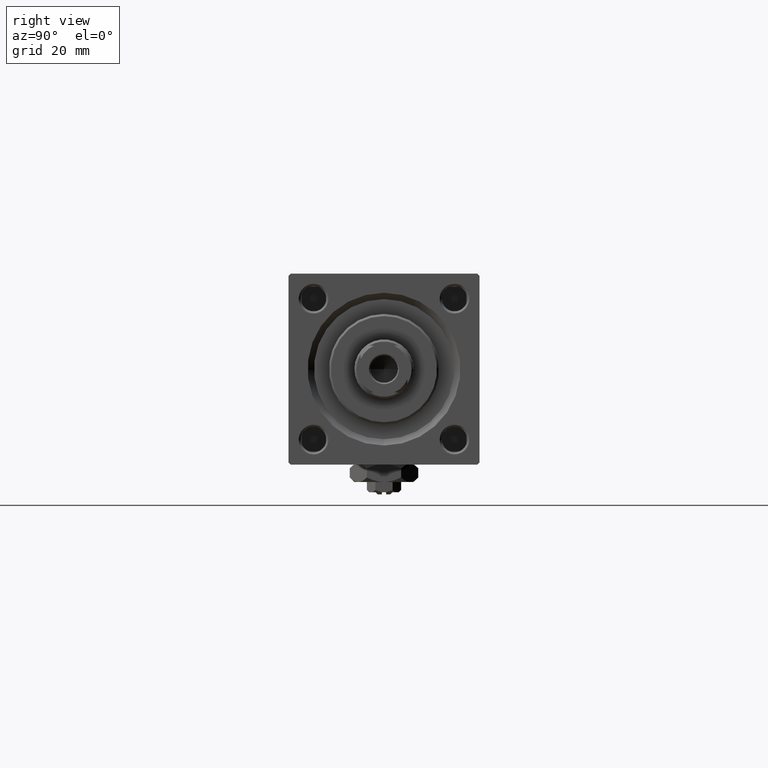
[diagram: clean part render]
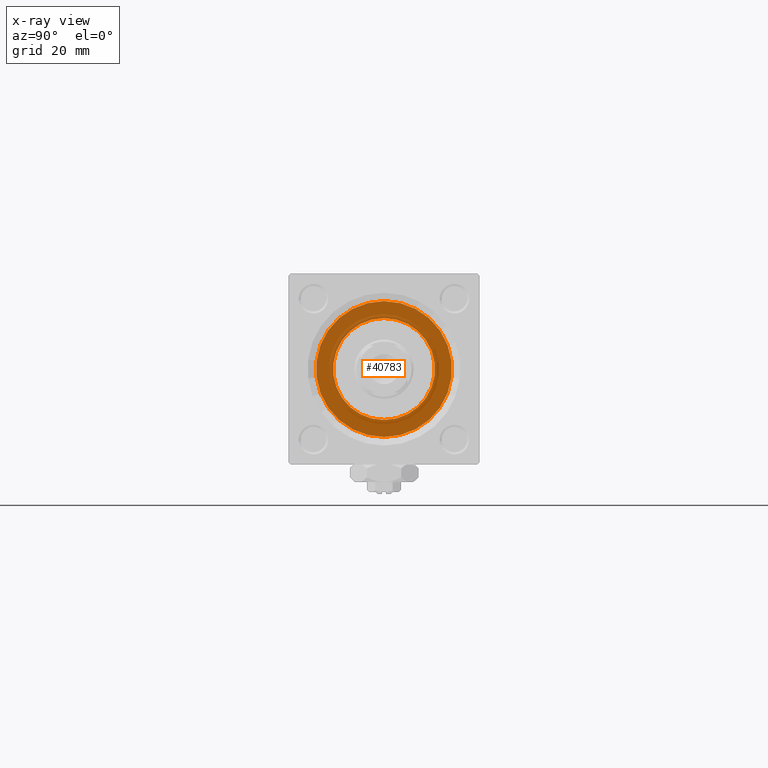
[diagram: x-ray — body ghosted, one internal face saturated and labeled with its STEP entity id]
A machine part, right view, then the same camera in x-ray: the body is ghosted and one INTERNAL B-rep face — a face not visible from any outside direction — is saturated and labeled: STEP entity #40783.
In plain terms, the highlighted planar face has unit normal (-1, 0, 0).
Its self-contained STEP definition (entity closure, byte-faithful):
#442 = DIRECTION ( 'NONE',  ( -1.000000000000000000, 0.000000000000000000, -0.000000000000000000 ) ) ;
#799 = CARTESIAN_POINT ( 'NONE',  ( 75.00000000000001421, 0.000000000000000000, 0.000000000000000000 ) ) ;
#1592 = EDGE_LOOP ( 'NONE', ( #27091, #36374 ) ) ;
#4223 = DIRECTION ( 'NONE',  ( -1.000000000000000000, 0.000000000000000000, -0.000000000000000000 ) ) ;
#4748 = CARTESIAN_POINT ( 'NONE',  ( 75.00000000000001421, 0.000000000000000000, 0.000000000000000000 ) ) ;
#7563 = CIRCLE ( 'NONE', #50542, 12.00000000000000178 ) ;
#9859 = EDGE_CURVE ( 'NONE', #45042, #16268, #7563, .T. ) ;
#10024 = CARTESIAN_POINT ( 'NONE',  ( 75.00000000000001421, -6.426503353294456087E-16, -16.00000000000000000 ) ) ;
#12125 = FACE_OUTER_BOUND ( 'NONE', #40928, .T. ) ;
#12746 = CIRCLE ( 'NONE', #27063, 16.00000000000000000 ) ;
#12914 = PLANE ( 'NONE',  #13118 ) ;
#13118 = AXIS2_PLACEMENT_3D ( 'NONE', #4748, #4223, #36133 ) ;
#13974 = CARTESIAN_POINT ( 'NONE',  ( 75.00000000000001421, -2.602085213965210642E-15, 16.00000000000000000 ) ) ;
#15455 = EDGE_CURVE ( 'NONE', #50141, #51930, #20936, .T. ) ;
#15731 = ORIENTED_EDGE ( 'NONE', *, *, #26838, .F. ) ;
#16268 = VERTEX_POINT ( 'NONE', #28775 ) ;
#18019 = CIRCLE ( 'NONE', #49160, 12.00000000000000178 ) ;
#20817 = DIRECTION ( 'NONE',  ( 1.000000000000000000, 0.000000000000000000, 0.000000000000000000 ) ) ;
#20936 = CIRCLE ( 'NONE', #45368, 16.00000000000000000 ) ;
#21133 = DIRECTION ( 'NONE',  ( 0.000000000000000000, 0.000000000000000000, -1.000000000000000000 ) ) ;
#24509 = CARTESIAN_POINT ( 'NONE',  ( 75.00000000000001421, -2.602085213965210642E-15, 0.000000000000000000 ) ) ;
#26838 = EDGE_CURVE ( 'NONE', #51930, #50141, #12746, .T. ) ;
#27063 = AXIS2_PLACEMENT_3D ( 'NONE', #34037, #50143, #21133 ) ;
#27091 = ORIENTED_EDGE ( 'NONE', *, *, #9859, .F. ) ;
#27875 = CARTESIAN_POINT ( 'NONE',  ( 75.00000000000001421, 0.000000000000000000, 0.000000000000000000 ) ) ;
#28775 = CARTESIAN_POINT ( 'NONE',  ( 75.00000000000001421, 1.469576158976824144E-15, 12.00000000000000178 ) ) ;
#32717 = DIRECTION ( 'NONE',  ( -1.000000000000000000, 0.000000000000000000, -0.000000000000000000 ) ) ;
#34037 = CARTESIAN_POINT ( 'NONE',  ( 75.00000000000001421, -2.602085213965210642E-15, 0.000000000000000000 ) ) ;
#34774 = CARTESIAN_POINT ( 'NONE',  ( 75.00000000000001421, 0.000000000000000000, -12.00000000000000178 ) ) ;
#36133 = DIRECTION ( 'NONE',  ( -0.000000000000000000, 0.000000000000000000, 1.000000000000000000 ) ) ;
#36374 = ORIENTED_EDGE ( 'NONE', *, *, #50919, .F. ) ;
#37076 = ORIENTED_EDGE ( 'NONE', *, *, #15455, .F. ) ;
#37185 = FACE_BOUND ( 'NONE', #1592, .T. ) ;
#37985 = DIRECTION ( 'NONE',  ( 0.000000000000000000, 0.000000000000000000, 1.000000000000000000 ) ) ;
#40783 = ADVANCED_FACE ( 'NONE', ( #37185, #12125 ), #12914, .T. ) ;
#40928 = EDGE_LOOP ( 'NONE', ( #37076, #15731 ) ) ;
#41118 = DIRECTION ( 'NONE',  ( 0.000000000000000000, 0.000000000000000000, -1.000000000000000000 ) ) ;
#43965 = DIRECTION ( 'NONE',  ( 0.000000000000000000, 0.000000000000000000, 1.000000000000000000 ) ) ;
#45042 = VERTEX_POINT ( 'NONE', #34774 ) ;
#45368 = AXIS2_PLACEMENT_3D ( 'NONE', #24509, #20817, #41118 ) ;
#49160 = AXIS2_PLACEMENT_3D ( 'NONE', #799, #32717, #37985 ) ;
#50141 = VERTEX_POINT ( 'NONE', #13974 ) ;
#50143 = DIRECTION ( 'NONE',  ( 1.000000000000000000, 0.000000000000000000, 0.000000000000000000 ) ) ;
#50542 = AXIS2_PLACEMENT_3D ( 'NONE', #27875, #442, #43965 ) ;
#50919 = EDGE_CURVE ( 'NONE', #16268, #45042, #18019, .T. ) ;
#51930 = VERTEX_POINT ( 'NONE', #10024 ) ;